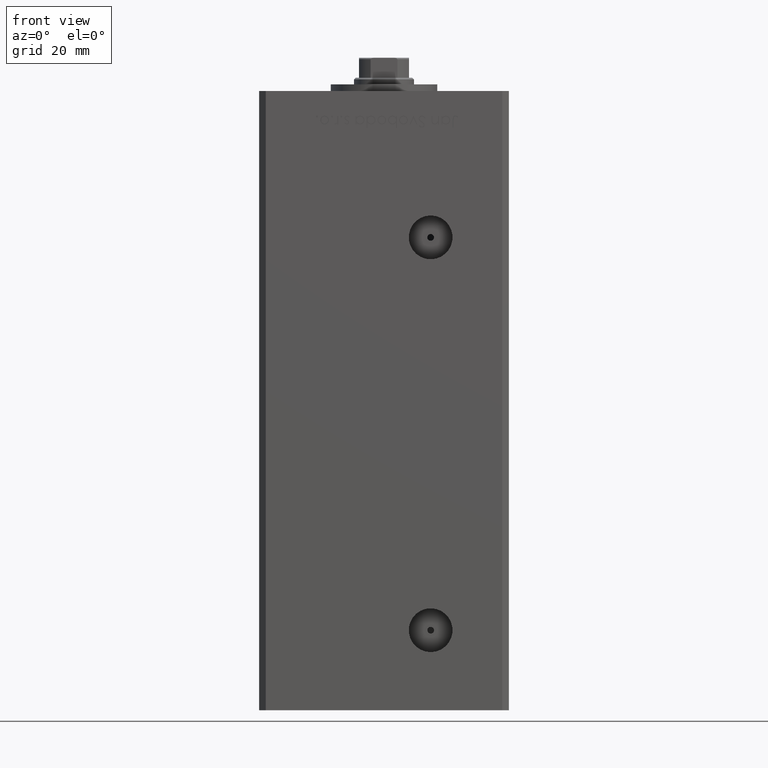
[diagram: clean part render]
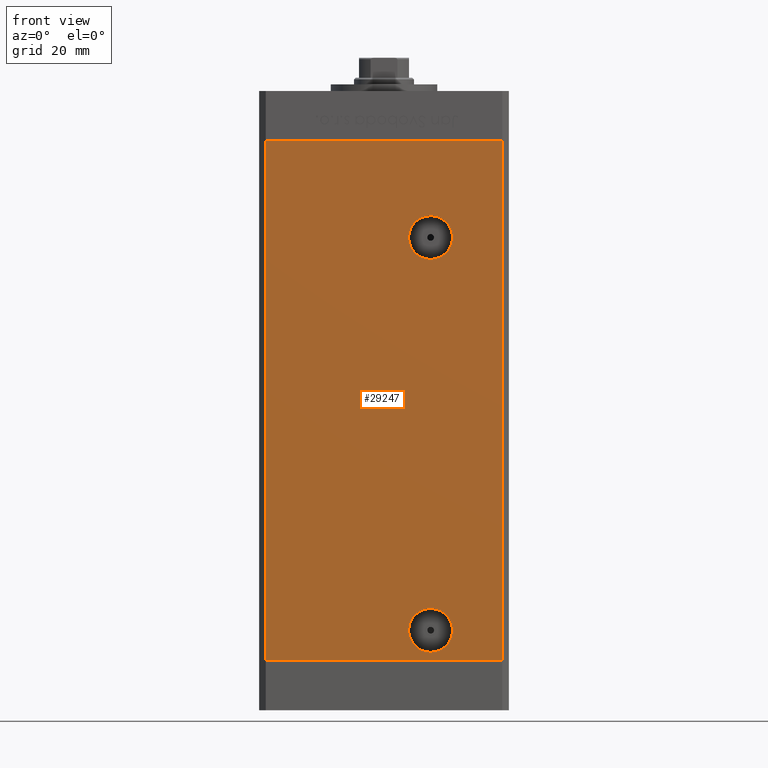
[diagram: same view with one face highlighted and labeled with its STEP entity id]
A machine part, front view. The second image highlights one B-rep face of the part: STEP entity #29247.
In plain terms, the highlighted planar face has unit normal (0, 1, 0).
Its self-contained STEP definition (entity closure, byte-faithful):
#158 = ORIENTED_EDGE ( 'NONE', *, *, #47120, .F. ) ;
#1673 = CARTESIAN_POINT ( 'NONE',  ( -35.49999999999999289, -32.50000000000000000, 156.0000000000000000 ) ) ;
#1749 = CARTESIAN_POINT ( 'NONE',  ( -35.49999999999999289, -32.50000000000000000, 0.000000000000000000 ) ) ;
#3024 = DIRECTION ( 'NONE',  ( 0.000000000000000000, -1.000000000000000000, 0.000000000000000000 ) ) ;
#3395 = DIRECTION ( 'NONE',  ( -0.000000000000000000, -0.000000000000000000, -1.000000000000000000 ) ) ;
#4570 = VECTOR ( 'NONE', #37100, 1000.000000000000000 ) ;
#4722 = ORIENTED_EDGE ( 'NONE', *, *, #15108, .T. ) ;
#5240 = ORIENTED_EDGE ( 'NONE', *, *, #6097, .F. ) ;
#5594 = ORIENTED_EDGE ( 'NONE', *, *, #6120, .F. ) ;
#5859 = VERTEX_POINT ( 'NONE', #46879 ) ;
#6097 = EDGE_CURVE ( 'NONE', #51449, #5859, #17530, .T. ) ;
#6120 = EDGE_CURVE ( 'NONE', #35831, #41450, #16375, .T. ) ;
#6185 = EDGE_LOOP ( 'NONE', ( #5594, #19669 ) ) ;
#7340 = LINE ( 'NONE', #23454, #40878 ) ;
#7906 = EDGE_CURVE ( 'NONE', #12626, #17556, #7340, .T. ) ;
#7930 = DIRECTION ( 'NONE',  ( -0.000000000000000000, 1.000000000000000000, -0.000000000000000000 ) ) ;
#7933 = EDGE_LOOP ( 'NONE', ( #4722, #5240, #158, #28936 ) ) ;
#9352 = DIRECTION ( 'NONE',  ( 0.000000000000000000, 0.000000000000000000, -1.000000000000000000 ) ) ;
#10507 = CARTESIAN_POINT ( 'NONE',  ( -35.49999999999999289, -32.50000000000000000, 0.000000000000000000 ) ) ;
#10583 = VERTEX_POINT ( 'NONE', #25353 ) ;
#10762 = AXIS2_PLACEMENT_3D ( 'NONE', #21105, #34084, #42251 ) ;
#12626 = VERTEX_POINT ( 'NONE', #34856 ) ;
#14681 = AXIS2_PLACEMENT_3D ( 'NONE', #50001, #33641, #9352 ) ;
#14976 = CIRCLE ( 'NONE', #10762, 6.580000000000002736 ) ;
#15108 = EDGE_CURVE ( 'NONE', #17556, #5859, #30257, .T. ) ;
#16375 = CIRCLE ( 'NONE', #14681, 6.579999999999998295 ) ;
#17153 = EDGE_CURVE ( 'NONE', #35418, #10583, #14976, .T. ) ;
#17261 = PLANE ( 'NONE',  #30346 ) ;
#17339 = CARTESIAN_POINT ( 'NONE',  ( -35.49999999999999289, -32.50000000000000000, 156.0000000000000000 ) ) ;
#17530 = LINE ( 'NONE', #40794, #4570 ) ;
#17556 = VERTEX_POINT ( 'NONE', #10507 ) ;
#19118 = DIRECTION ( 'NONE',  ( 0.000000000000000000, 0.000000000000000000, -1.000000000000000000 ) ) ;
#19669 = ORIENTED_EDGE ( 'NONE', *, *, #27403, .F. ) ;
#20023 = EDGE_LOOP ( 'NONE', ( #24753, #24180 ) ) ;
#21105 = CARTESIAN_POINT ( 'NONE',  ( 13.99999999999999112, -32.50000000000000000, 127.0000000000000000 ) ) ;
#21793 = AXIS2_PLACEMENT_3D ( 'NONE', #31701, #7930, #36466 ) ;
#23454 = CARTESIAN_POINT ( 'NONE',  ( -35.49999999999999289, -32.50000000000000000, 156.0000000000000000 ) ) ;
#23837 = CARTESIAN_POINT ( 'NONE',  ( 13.99999999999999112, -32.50000000000000000, 15.58000000000000718 ) ) ;
#24180 = ORIENTED_EDGE ( 'NONE', *, *, #36592, .T. ) ;
#24424 = CIRCLE ( 'NONE', #52210, 6.579999999999998295 ) ;
#24753 = ORIENTED_EDGE ( 'NONE', *, *, #17153, .T. ) ;
#25353 = CARTESIAN_POINT ( 'NONE',  ( 13.99999999999999112, -32.50000000000000000, 133.5800000000000125 ) ) ;
#25964 = FACE_BOUND ( 'NONE', #20023, .T. ) ;
#26112 = CARTESIAN_POINT ( 'NONE',  ( 13.99999999999999112, -32.50000000000000000, 120.4200000000000017 ) ) ;
#26543 = CARTESIAN_POINT ( 'NONE',  ( 13.99999999999999112, -32.50000000000000000, 9.000000000000007105 ) ) ;
#27403 = EDGE_CURVE ( 'NONE', #41450, #35831, #24424, .T. ) ;
#28936 = ORIENTED_EDGE ( 'NONE', *, *, #7906, .T. ) ;
#29247 = ADVANCED_FACE ( 'NONE', ( #46279, #49193, #25964 ), #17261, .F. ) ;
#30257 = LINE ( 'NONE', #1749, #42740 ) ;
#30346 = AXIS2_PLACEMENT_3D ( 'NONE', #1673, #49982, #37086 ) ;
#31701 = CARTESIAN_POINT ( 'NONE',  ( 13.99999999999999112, -32.50000000000000000, 127.0000000000000000 ) ) ;
#32776 = CIRCLE ( 'NONE', #21793, 6.580000000000002736 ) ;
#33279 = CARTESIAN_POINT ( 'NONE',  ( 35.49999999999999289, -32.50000000000000000, 156.0000000000000000 ) ) ;
#33453 = DIRECTION ( 'NONE',  ( 1.000000000000000000, 0.000000000000000000, 0.000000000000000000 ) ) ;
#33641 = DIRECTION ( 'NONE',  ( 0.000000000000000000, -1.000000000000000000, 0.000000000000000000 ) ) ;
#33992 = LINE ( 'NONE', #17339, #34621 ) ;
#34084 = DIRECTION ( 'NONE',  ( -0.000000000000000000, 1.000000000000000000, -0.000000000000000000 ) ) ;
#34106 = CARTESIAN_POINT ( 'NONE',  ( 13.99999999999999112, -32.50000000000000000, 2.420000000000009699 ) ) ;
#34621 = VECTOR ( 'NONE', #33453, 1000.000000000000000 ) ;
#34856 = CARTESIAN_POINT ( 'NONE',  ( -35.49999999999999289, -32.50000000000000000, 156.0000000000000000 ) ) ;
#35418 = VERTEX_POINT ( 'NONE', #26112 ) ;
#35831 = VERTEX_POINT ( 'NONE', #34106 ) ;
#36466 = DIRECTION ( 'NONE',  ( 0.000000000000000000, 0.000000000000000000, -1.000000000000000000 ) ) ;
#36592 = EDGE_CURVE ( 'NONE', #10583, #35418, #32776, .T. ) ;
#37086 = DIRECTION ( 'NONE',  ( 0.000000000000000000, -0.000000000000000000, 1.000000000000000000 ) ) ;
#37100 = DIRECTION ( 'NONE',  ( -0.000000000000000000, -0.000000000000000000, -1.000000000000000000 ) ) ;
#40794 = CARTESIAN_POINT ( 'NONE',  ( 35.49999999999999289, -32.50000000000000000, 156.0000000000000000 ) ) ;
#40878 = VECTOR ( 'NONE', #3395, 1000.000000000000000 ) ;
#41450 = VERTEX_POINT ( 'NONE', #23837 ) ;
#42251 = DIRECTION ( 'NONE',  ( 0.000000000000000000, 0.000000000000000000, -1.000000000000000000 ) ) ;
#42740 = VECTOR ( 'NONE', #50310, 1000.000000000000000 ) ;
#46279 = FACE_BOUND ( 'NONE', #6185, .T. ) ;
#46879 = CARTESIAN_POINT ( 'NONE',  ( 35.49999999999999289, -32.50000000000000000, 0.000000000000000000 ) ) ;
#47120 = EDGE_CURVE ( 'NONE', #12626, #51449, #33992, .T. ) ;
#49193 = FACE_OUTER_BOUND ( 'NONE', #7933, .T. ) ;
#49982 = DIRECTION ( 'NONE',  ( 0.000000000000000000, 1.000000000000000000, 0.000000000000000000 ) ) ;
#50001 = CARTESIAN_POINT ( 'NONE',  ( 13.99999999999999112, -32.50000000000000000, 9.000000000000007105 ) ) ;
#50310 = DIRECTION ( 'NONE',  ( 1.000000000000000000, 0.000000000000000000, 0.000000000000000000 ) ) ;
#51449 = VERTEX_POINT ( 'NONE', #33279 ) ;
#52210 = AXIS2_PLACEMENT_3D ( 'NONE', #26543, #3024, #19118 ) ;